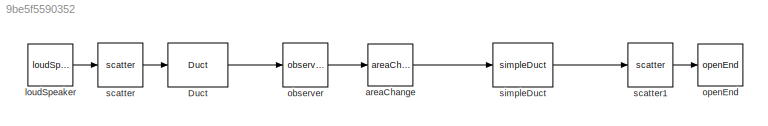
MODEL slx_9be5f5590352
KIND model
CONFIG AbsTol = auto
CONFIG FixedStep = 1.0
CONFIG MaxStep = auto
CONFIG MinStep = auto
CONFIG RelTol = 1e-3
CONFIG SampleTimeConstraint = Unconstrained
CONFIG Solver = FixedStepDiscrete
CONFIG SolverMode = Auto
CONFIG SolverName = FixedStepDiscrete
CONFIG StartTime = 0.0
CONFIG StopTime = 1.0
BLOCK [Reference] Duct  REF=taXlibrary/Duct
  AttributesFormatString = %<l> m
  Ports = [1, 1]
  SourceBlock = taXlibrary/Duct
  element = Duct
  l = 0.5
  minres = 40
  order = 3
  sensorPositions = []
BLOCK [Reference] areaChange  REF=taXlibrary/areaChange
  A = 4
  AttributesFormatString = %<A> m^2
  Ports = [1, 1]
  SourceBlock = taXlibrary/areaChange
  element = lZeta
  l = 1
  leff = 0
  lred = 0
  zeta = 0
BLOCK [Reference] loudSpeaker  REF=taXlibrary/loudSpeaker
  A = 1.4
  Amp = 1
  AttributesFormatString = %<Amp> m/s
  Mach = 0.1
  Ports = [0, 1]
  SourceBlock = taXlibrary/loudSpeaker
  c = 100
  element = loudSpeaker
  loc = Upstream
  rho = 1.2
BLOCK [Reference] observer  REF=taXlibrary/observer
  Ports = [1, 1]
  SourceBlock = taXlibrary/observer
  element = observer
  property = p_u
BLOCK [Reference] openEnd  REF=taXlibrary/openEnd
  A = []
  Mach = []
  Ports = [1]
  SourceBlock = taXlibrary/openEnd
  c = []
  element = openEnd
  loc = Downstream
  rho = []
BLOCK [Reference] scatter  REF=taXlibrary/scatter
  Ports = [1, 1]
  SourceBlock = taXlibrary/scatter
  element = scatteringDummy
  loc = Upstream
BLOCK [Reference] scatter1  REF=taXlibrary/scatter
  Ports = [1, 1]
  SourceBlock = taXlibrary/scatter
  element = scatteringDummy
  loc = Downstream
BLOCK [Reference] simpleDuct  REF=taXlibrary/simpleDuct
  AttributesFormatString = %<l> m
  Ports = [1, 1]
  Pr = 5
  SourceBlock = taXlibrary/simpleDuct
  damping_model_id = 1
  damping_model_popup = no damping
  element = simpleDuct
  gm = 1.4
  l = 0.25
  nu = 1.568e-5
LINE Duct:1 -> observer:1
LINE areaChange:1 -> simpleDuct:1
LINE loudSpeaker:1 -> scatter:1
LINE observer:1 -> areaChange:1
LINE scatter1:1 -> openEnd:1
LINE scatter:1 -> Duct:1
LINE simpleDuct:1 -> scatter1:1
